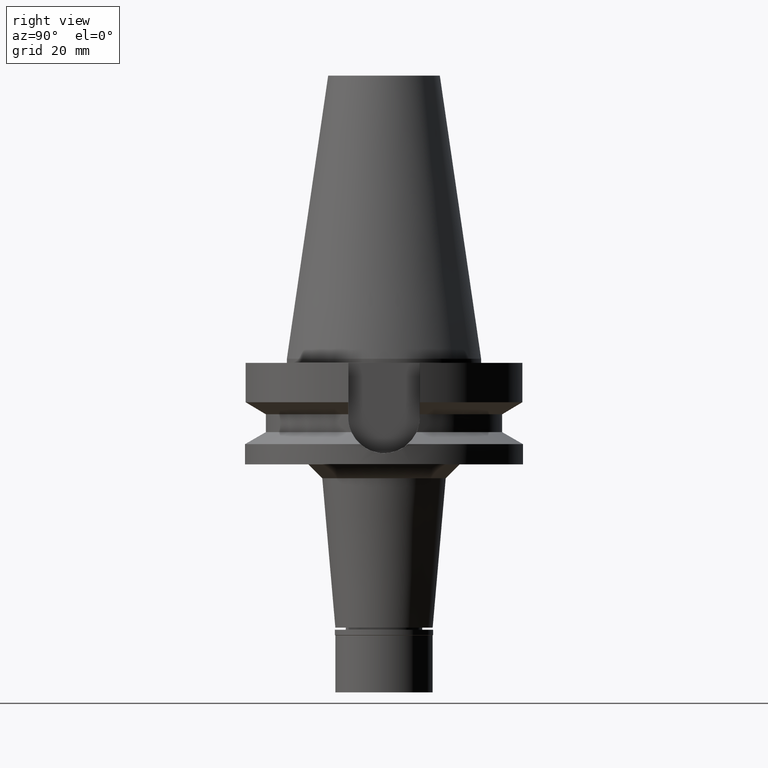
[diagram: clean part render]
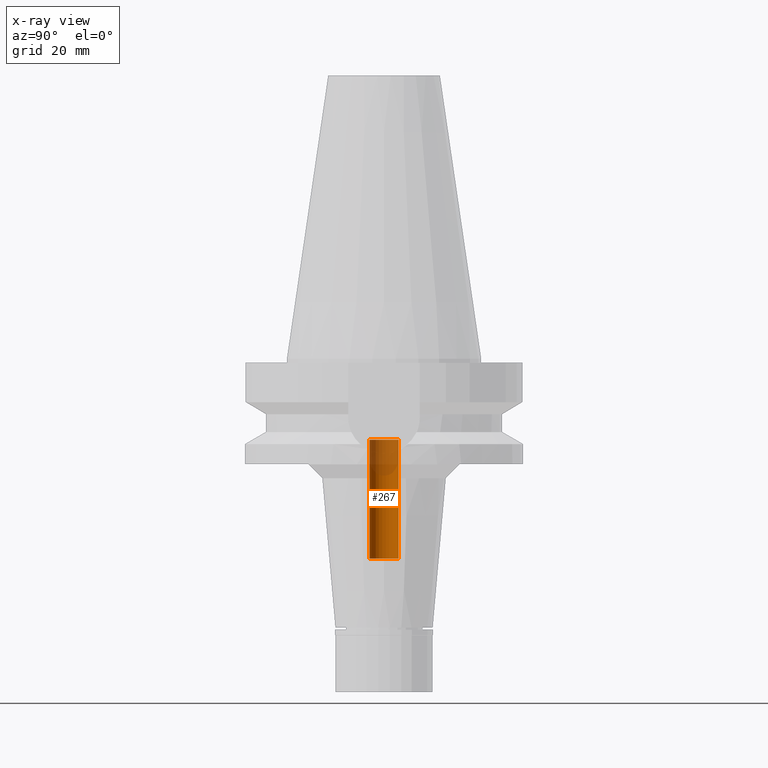
[diagram: x-ray — body ghosted, one internal face saturated and labeled with its STEP entity id]
A machine part, right view, then the same camera in x-ray: the body is ghosted and one INTERNAL B-rep face — a face not visible from any outside direction — is saturated and labeled: STEP entity #267.
In plain terms, the highlighted cylindrical surface (edge-blend (fillet) strip) has radius 5.2 mm, axis along (0, 0, -1).
Its self-contained STEP definition (entity closure, byte-faithful):
#15 = EDGE_CURVE ( 'NONE', #2642, #562, #1742, .T. ) ;
#164 = VECTOR ( 'NONE', #1189, 1000.000000000000000 ) ;
#261 = ORIENTED_EDGE ( 'NONE', *, *, #912, .T. ) ;
#267 = ADVANCED_FACE ( 'NONE', ( #424 ), #2332, .F. ) ;
#317 = VECTOR ( 'NONE', #2760, 1000.000000000000000 ) ;
#333 = EDGE_CURVE ( 'NONE', #1239, #1792, #1281, .T. ) ;
#424 = FACE_OUTER_BOUND ( 'NONE', #848, .T. ) ;
#562 = VERTEX_POINT ( 'NONE', #2453 ) ;
#760 = DIRECTION ( 'NONE',  ( 0.0000000000000000000, -1.000000000000000000, 0.0000000000000000000 ) ) ;
#795 = CARTESIAN_POINT ( 'NONE',  ( 0.0000000000000000000, 2.603048003927999965E-14, -72.00000000000000000 ) ) ;
#848 = EDGE_LOOP ( 'NONE', ( #3020, #2900, #2518, #261 ) ) ;
#902 = CARTESIAN_POINT ( 'NONE',  ( 0.0000000000000000000, 2.603048003927999965E-14, 112.5550000000000068 ) ) ;
#912 = EDGE_CURVE ( 'NONE', #562, #1239, #1780, .T. ) ;
#1154 = DIRECTION ( 'NONE',  ( 0.0000000000000000000, 0.0000000000000000000, 1.000000000000000000 ) ) ;
#1189 = DIRECTION ( 'NONE',  ( 0.0000000000000000000, 0.0000000000000000000, 1.000000000000000000 ) ) ;
#1239 = VERTEX_POINT ( 'NONE', #3123 ) ;
#1281 = CIRCLE ( 'NONE', #3090, 5.200000000000000178 ) ;
#1343 = AXIS2_PLACEMENT_3D ( 'NONE', #795, #2488, #760 ) ;
#1481 = LINE ( 'NONE', #2658, #164 ) ;
#1564 = CARTESIAN_POINT ( 'NONE',  ( 0.0000000000000000000, 5.200000000000000178, -72.00000000000000000 ) ) ;
#1613 = CARTESIAN_POINT ( 'NONE',  ( 0.0000000000000000000, 2.603048003927999965E-14, -29.19999999999999929 ) ) ;
#1627 = DIRECTION ( 'NONE',  ( 0.0000000000000000000, 0.0000000000000000000, -1.000000000000000000 ) ) ;
#1742 = CIRCLE ( 'NONE', #1343, 5.200000000000000178 ) ;
#1780 = LINE ( 'NONE', #1564, #317 ) ;
#1792 = VERTEX_POINT ( 'NONE', #1909 ) ;
#1875 = DIRECTION ( 'NONE',  ( 0.0000000000000000000, -1.000000000000000000, 0.0000000000000000000 ) ) ;
#1908 = CARTESIAN_POINT ( 'NONE',  ( 0.0000000000000000000, -5.200000000000000178, -72.00000000000000000 ) ) ;
#1909 = CARTESIAN_POINT ( 'NONE',  ( 0.0000000000000000000, -5.200000000000000178, -29.19999999999999929 ) ) ;
#1917 = EDGE_CURVE ( 'NONE', #2642, #1792, #1481, .T. ) ;
#2332 = CYLINDRICAL_SURFACE ( 'NONE', #2873, 5.200000000000000178 ) ;
#2453 = CARTESIAN_POINT ( 'NONE',  ( 0.0000000000000000000, 5.200000000000000178, -72.00000000000000000 ) ) ;
#2488 = DIRECTION ( 'NONE',  ( 0.0000000000000000000, 0.0000000000000000000, -1.000000000000000000 ) ) ;
#2518 = ORIENTED_EDGE ( 'NONE', *, *, #15, .T. ) ;
#2589 = DIRECTION ( 'NONE',  ( 0.0000000000000000000, 1.000000000000000000, 0.0000000000000000000 ) ) ;
#2642 = VERTEX_POINT ( 'NONE', #1908 ) ;
#2658 = CARTESIAN_POINT ( 'NONE',  ( 0.0000000000000000000, -5.200000000000000178, -72.00000000000000000 ) ) ;
#2760 = DIRECTION ( 'NONE',  ( 0.0000000000000000000, 0.0000000000000000000, 1.000000000000000000 ) ) ;
#2873 = AXIS2_PLACEMENT_3D ( 'NONE', #902, #1627, #1875 ) ;
#2900 = ORIENTED_EDGE ( 'NONE', *, *, #1917, .F. ) ;
#3020 = ORIENTED_EDGE ( 'NONE', *, *, #333, .T. ) ;
#3090 = AXIS2_PLACEMENT_3D ( 'NONE', #1613, #1154, #2589 ) ;
#3123 = CARTESIAN_POINT ( 'NONE',  ( 0.0000000000000000000, 5.200000000000000178, -29.19999999999999929 ) ) ;